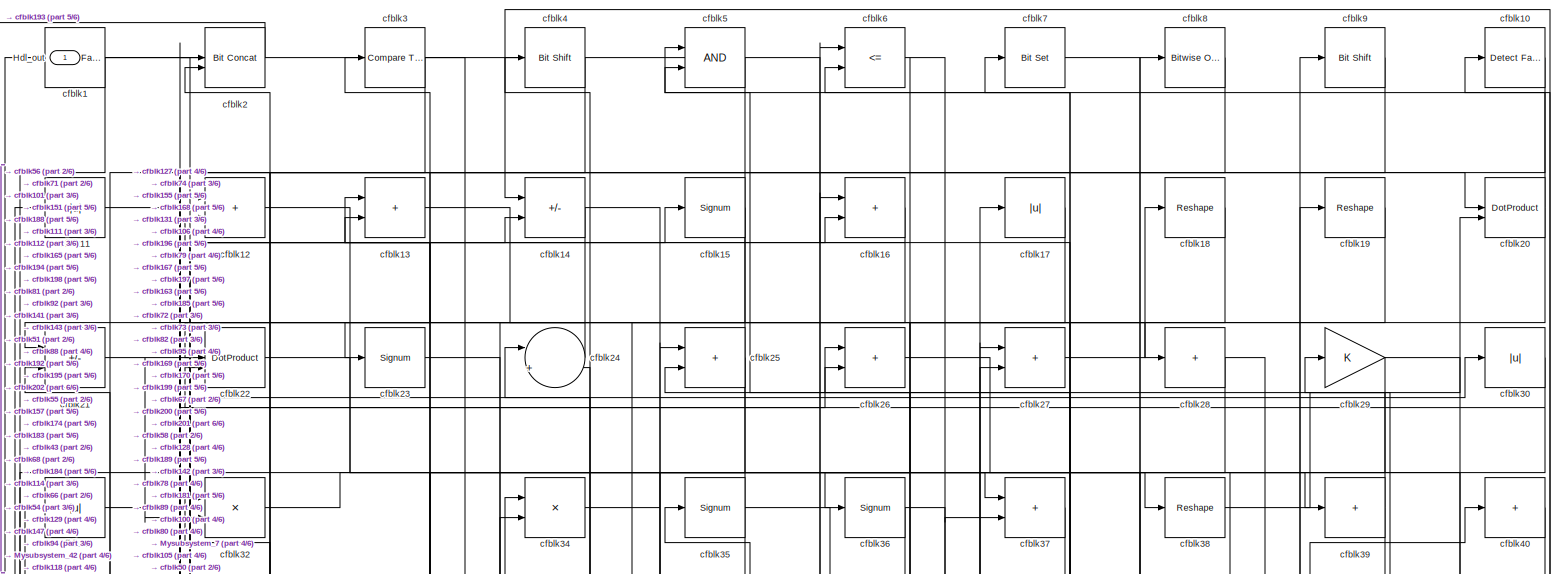
[diagram: root canvas - part 1/6, full width, top band]
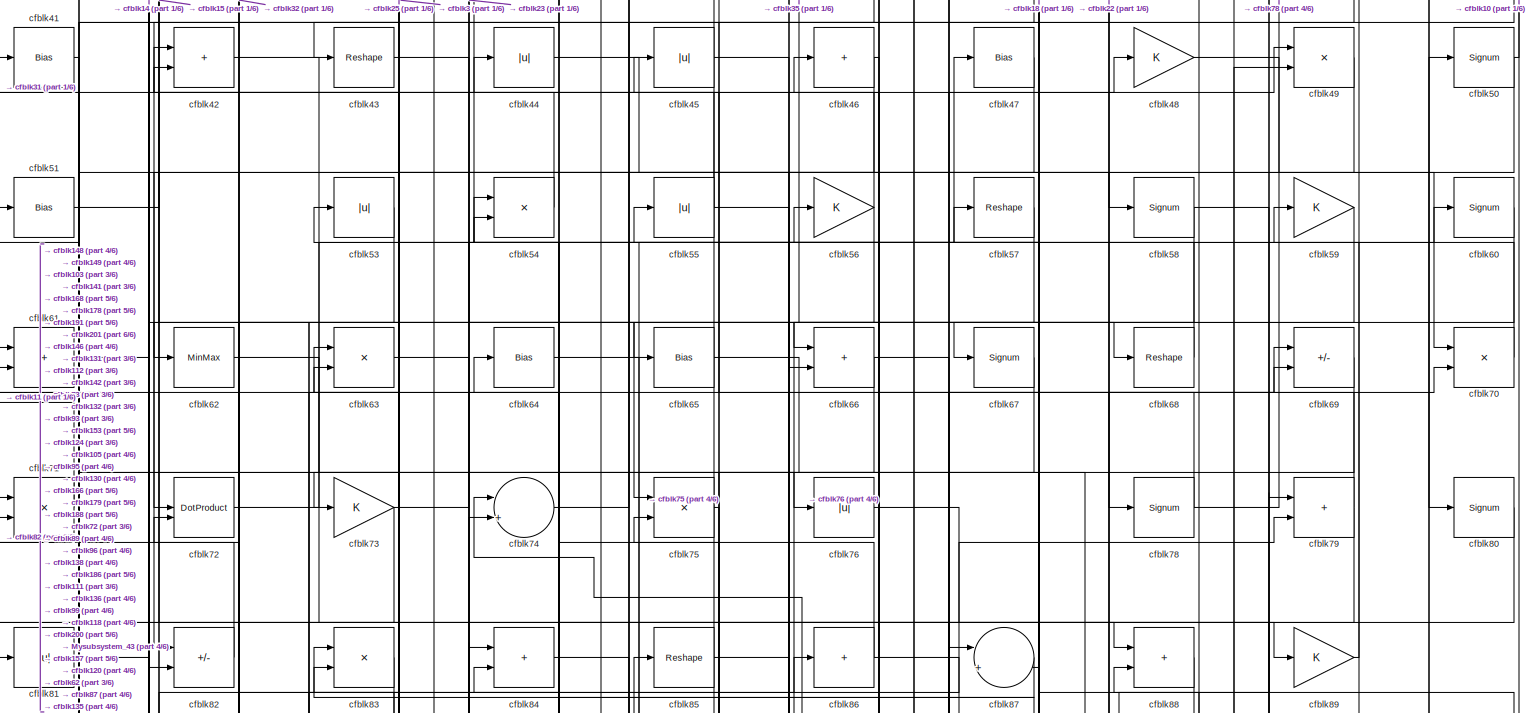
[diagram: root canvas - part 2/6, full width, top band]
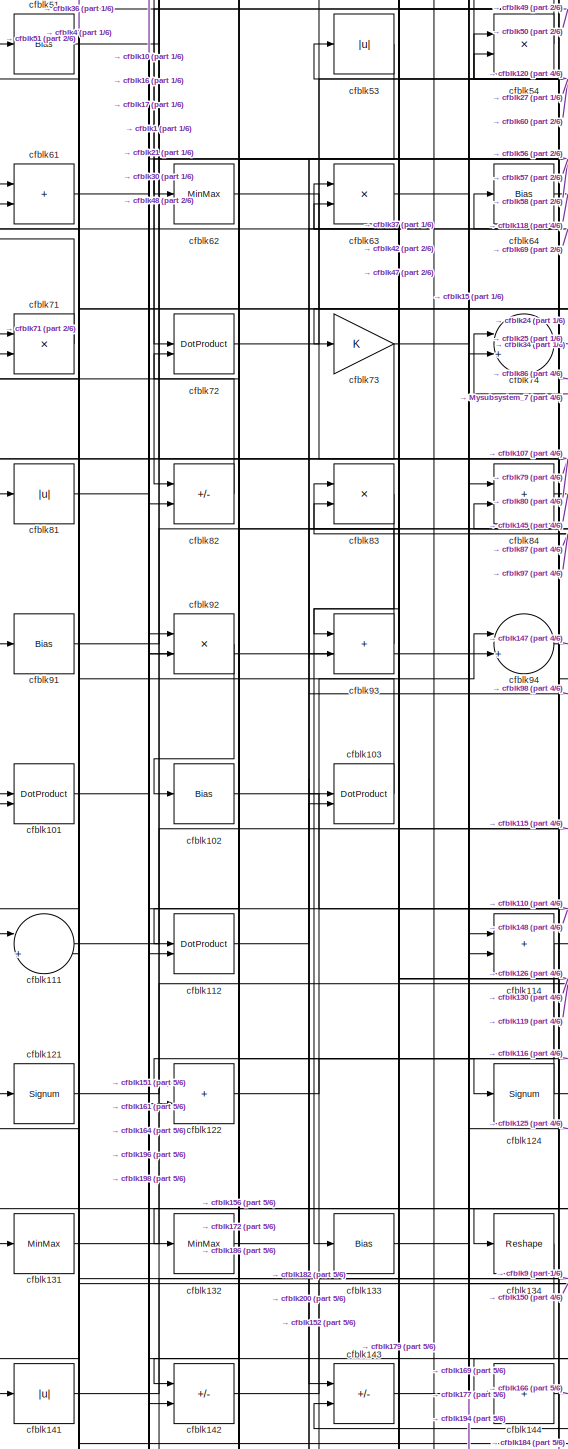
[diagram: root canvas - part 3/6, middle left region]
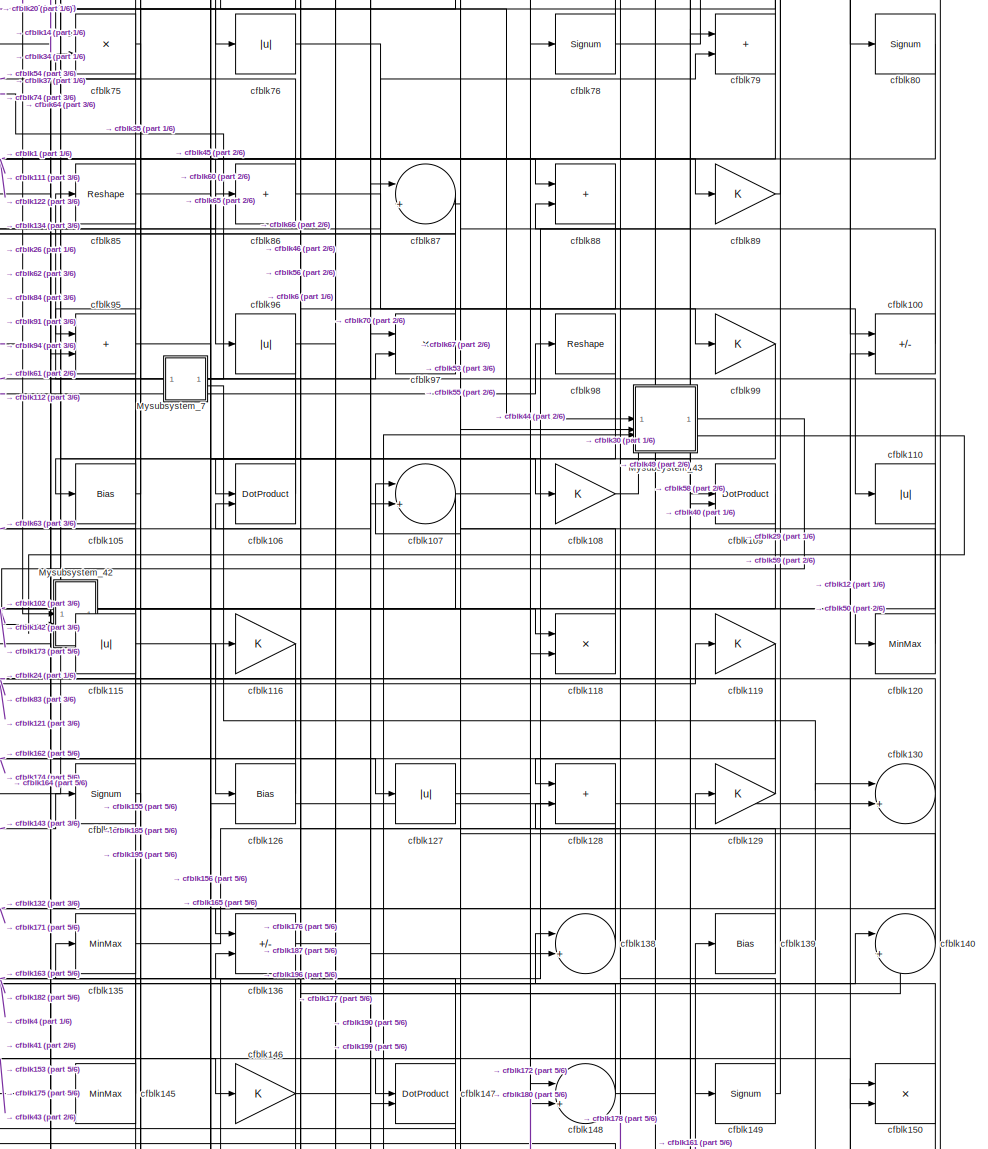
[diagram: root canvas - part 4/6, middle right region]
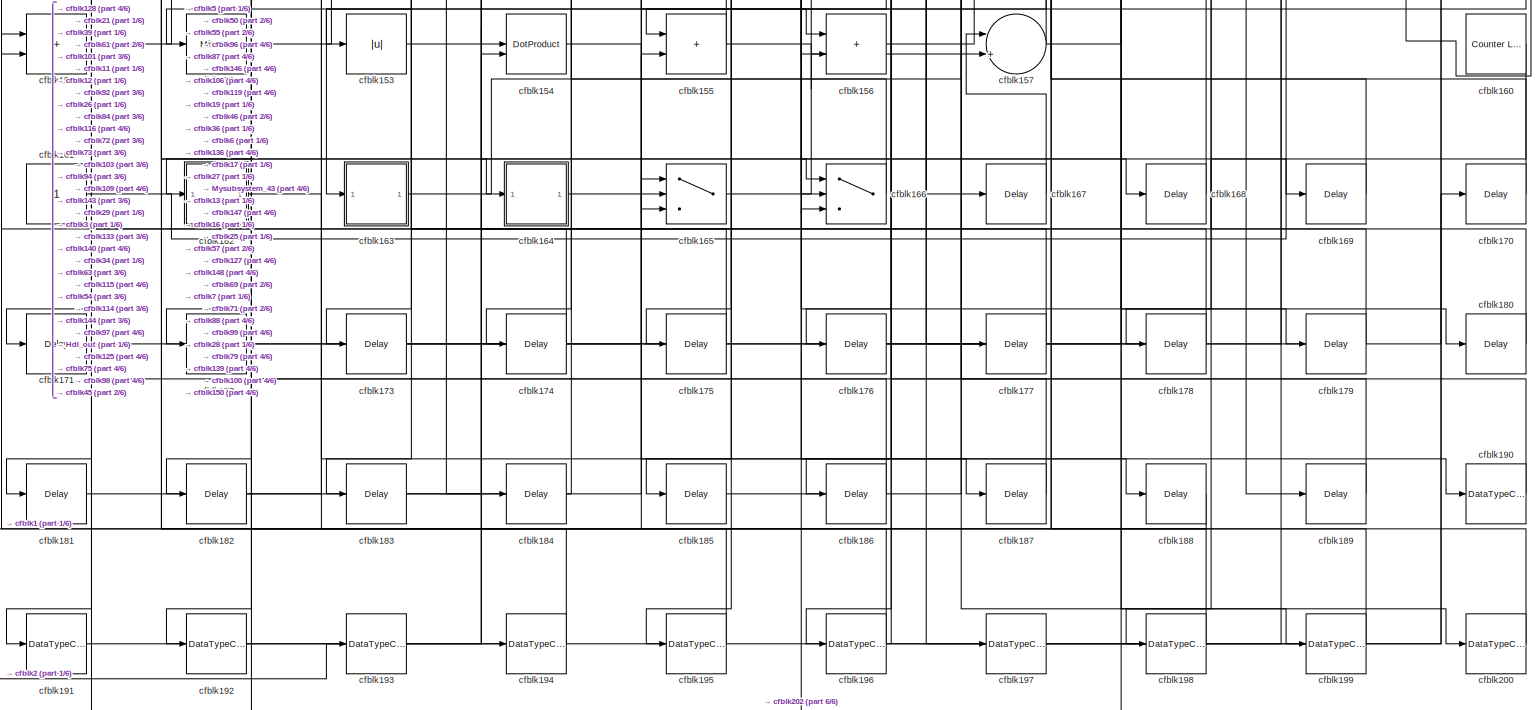
[diagram: root canvas - part 5/6, full width, bottom band]
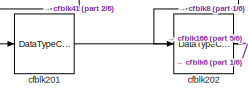
[diagram: root canvas - part 6/6, bottom left region]
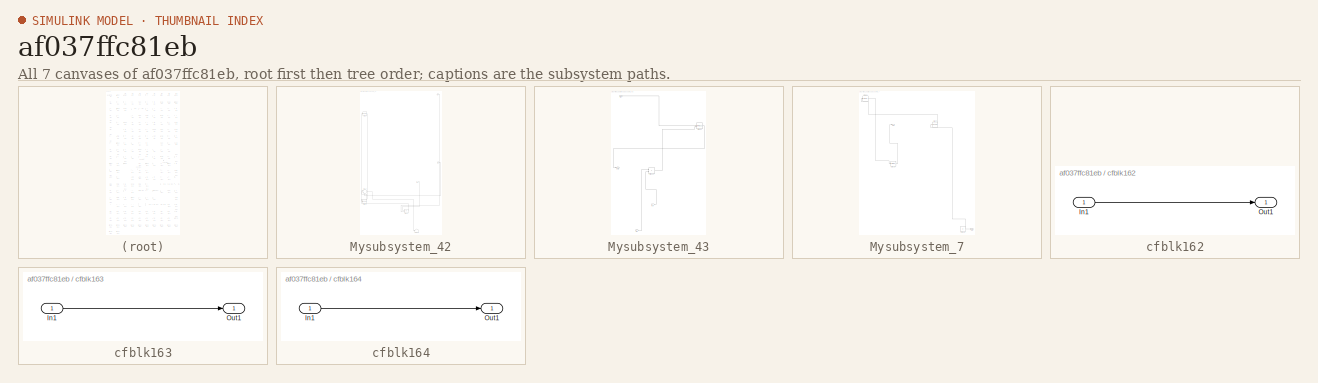
[diagram: thumbnail index - all 7 canvases of the model, root first then tree order]
MODEL slx_af037ffc81eb
KIND model
CONFIG AbsTol = auto
CONFIG EnableMultiTasking = off
CONFIG FixedStep = auto
CONFIG MaxStep = auto
CONFIG MinStep = auto
CONFIG RelTol = 1e-3
CONFIG SampleTimeConstraint = Unconstrained
CONFIG SolverName = VariableStepAuto
CONFIG StartTime = 0.0
CONFIG StopTime = 10.0
BLOCK [Outport] Hdl_out
  OutDataTypeStr = uint8
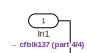
[diagram: Mysubsystem_42 - part 1/4, top right region]
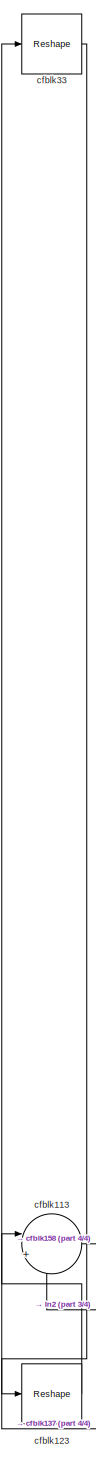
[diagram: Mysubsystem_42 - part 2/4, middle left region]
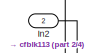
[diagram: Mysubsystem_42 - part 3/4, middle right region]
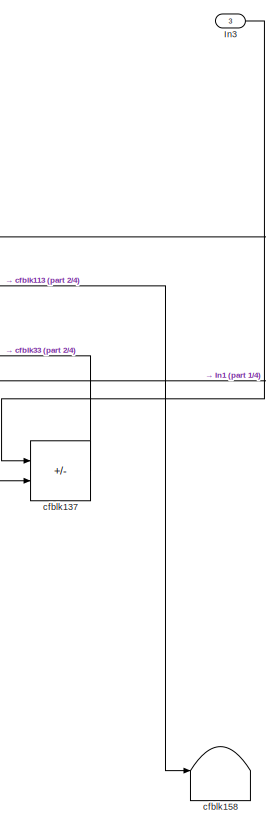
[diagram: Mysubsystem_42 - part 4/4, bottom center region]
BLOCK [SubSystem] Mysubsystem_42
  RTWFcnName = Mysubsystem_42
  RTWFcnNameOpts = User specified
  RTWFileNameOpts = Use function name
  RTWSystemCode = Reusable function
  TreatAsAtomicUnit = on
BLOCK [Inport] Mysubsystem_42/In1
BLOCK [Inport] Mysubsystem_42/In2
  Port = 2
BLOCK [Inport] Mysubsystem_42/In3
  Port = 3
BLOCK [Sum] Mysubsystem_42/cfblk113
  Inputs = |++
BLOCK [Reshape] Mysubsystem_42/cfblk123
BLOCK [Sum] Mysubsystem_42/cfblk137
  IconShape = rectangular
  Inputs = +-
BLOCK [Terminator] Mysubsystem_42/cfblk158
BLOCK [Reshape] Mysubsystem_42/cfblk33
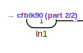
[diagram: Mysubsystem_43 - part 1/2, top left region]
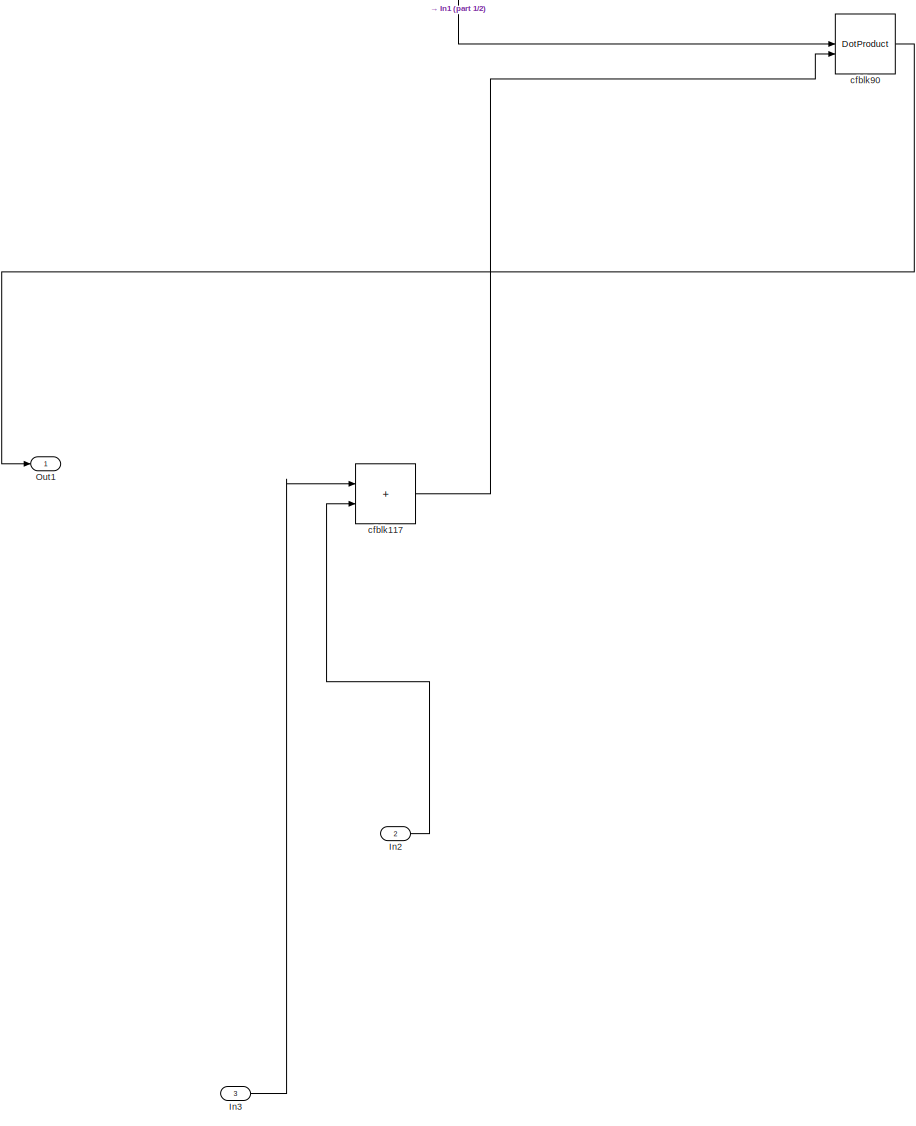
[diagram: Mysubsystem_43 - part 2/2, most of the canvas]
BLOCK [SubSystem] Mysubsystem_43
  RTWFcnName = Mysubsystem_43
  RTWFcnNameOpts = User specified
  RTWFileNameOpts = Use function name
  RTWSystemCode = Reusable function
  TreatAsAtomicUnit = on
BLOCK [Inport] Mysubsystem_43/In1
BLOCK [Inport] Mysubsystem_43/In2
  Port = 2
BLOCK [Inport] Mysubsystem_43/In3
  Port = 3
BLOCK [Outport] Mysubsystem_43/Out1
BLOCK [Sum] Mysubsystem_43/cfblk117
  IconShape = rectangular
BLOCK [DotProduct] Mysubsystem_43/cfblk90
  OutDataTypeStr = Inherit: Inherit via internal rule
BLOCK [SubSystem] Mysubsystem_7
  RTWFcnName = Mysubsystem_7
  RTWFcnNameOpts = User specified
  RTWFileNameOpts = Use function name
  RTWSystemCode = Reusable function
  TreatAsAtomicUnit = on
BLOCK [Outport] Mysubsystem_7/Out1
BLOCK [Outport] Mysubsystem_7/Out2
  Port = 2
BLOCK [MinMax] Mysubsystem_7/cfblk104
BLOCK [Constant] Mysubsystem_7/cfblk159
  SampleTime = -1
BLOCK [MinMax] Mysubsystem_7/cfblk52
BLOCK [Reshape] Mysubsystem_7/cfblk77
BLOCK [Reference] cfblk1  REF=hdlsllib/Logic and Bit
Operations/Detect Fall
Negative
  SourceBlock = hdlsllib/Logic and Bit\nOperations/Detect Fall\nNegative
  SourceType = Detect Fall Negative
BLOCK [Reference] cfblk10  REF=hdlsllib/Logic and Bit
Operations/Detect Fall
Nonpositive
  SourceBlock = hdlsllib/Logic and Bit\nOperations/Detect Fall\nNonpositive
  SourceType = Detect Fall Nonpositive
BLOCK [Sum] cfblk100
  IconShape = rectangular
  Inputs = +-
  OutDataTypeStr = uint8
BLOCK [DotProduct] cfblk101
  OutDataTypeStr = uint8
BLOCK [Bias] cfblk102
  Bias = 0.0
  SaturateOnIntegerOverflow = off
BLOCK [DotProduct] cfblk103
  OutDataTypeStr = uint8
BLOCK [Bias] cfblk105
  Bias = 0.0
  SaturateOnIntegerOverflow = off
BLOCK [DotProduct] cfblk106
  OutDataTypeStr = uint8
BLOCK [Sum] cfblk107
  Inputs = |++
  OutDataTypeStr = uint8
BLOCK [Gain] cfblk108
  OutDataTypeStr = uint8
BLOCK [DotProduct] cfblk109
  OutDataTypeStr = uint8
BLOCK [Abs] cfblk11
  OutDataTypeStr = uint8
  SaturateOnIntegerOverflow = off
BLOCK [Abs] cfblk110
  OutDataTypeStr = uint8
  SaturateOnIntegerOverflow = off
BLOCK [Sum] cfblk111
  Inputs = |++
  OutDataTypeStr = uint8
BLOCK [DotProduct] cfblk112
  OutDataTypeStr = uint8
BLOCK [Sum] cfblk114
  IconShape = rectangular
  OutDataTypeStr = uint8
BLOCK [Abs] cfblk115
  OutDataTypeStr = uint8
  SaturateOnIntegerOverflow = off
BLOCK [Gain] cfblk116
  OutDataTypeStr = uint8
BLOCK [Product] cfblk118
  Inputs = */
  OutDataTypeStr = uint8
  RndMeth = Zero
  SaturateOnIntegerOverflow = on
BLOCK [Gain] cfblk119
  OutDataTypeStr = uint8
BLOCK [Sum] cfblk12
  IconShape = rectangular
  OutDataTypeStr = uint8
BLOCK [MinMax] cfblk120
  OutDataTypeStr = uint8
BLOCK [Signum] cfblk121
BLOCK [Sum] cfblk122
  IconShape = rectangular
  OutDataTypeStr = uint8
BLOCK [Signum] cfblk124
BLOCK [Signum] cfblk125
BLOCK [Bias] cfblk126
  Bias = 0.0
  SaturateOnIntegerOverflow = off
BLOCK [Abs] cfblk127
  OutDataTypeStr = uint8
  SaturateOnIntegerOverflow = off
BLOCK [Sum] cfblk128
  IconShape = rectangular
  OutDataTypeStr = uint8
BLOCK [Gain] cfblk129
  OutDataTypeStr = uint8
BLOCK [Sum] cfblk13
  IconShape = rectangular
  OutDataTypeStr = uint8
BLOCK [Sum] cfblk130
  Inputs = |++
  OutDataTypeStr = uint8
BLOCK [MinMax] cfblk131
  OutDataTypeStr = uint8
BLOCK [MinMax] cfblk132
  OutDataTypeStr = uint8
BLOCK [Bias] cfblk133
  Bias = 0.0
  SaturateOnIntegerOverflow = off
BLOCK [Reshape] cfblk134
BLOCK [MinMax] cfblk135
  OutDataTypeStr = uint8
BLOCK [Sum] cfblk136
  IconShape = rectangular
  Inputs = +-
  OutDataTypeStr = uint8
BLOCK [Sum] cfblk138
  Inputs = |++
  OutDataTypeStr = uint8
BLOCK [Bias] cfblk139
  Bias = 0.0
  SaturateOnIntegerOverflow = off
BLOCK [Sum] cfblk14
  IconShape = rectangular
  Inputs = +-
  OutDataTypeStr = uint8
BLOCK [Sum] cfblk140
  Inputs = |++
  OutDataTypeStr = uint8
BLOCK [Abs] cfblk141
  OutDataTypeStr = uint8
  SaturateOnIntegerOverflow = off
BLOCK [Sum] cfblk142
  IconShape = rectangular
  Inputs = +-
  OutDataTypeStr = uint8
BLOCK [Sum] cfblk143
  IconShape = rectangular
  Inputs = +-
  OutDataTypeStr = uint8
BLOCK [Sum] cfblk144
  IconShape = rectangular
  Inputs = +
  OutDataTypeStr = uint8
BLOCK [MinMax] cfblk145
  OutDataTypeStr = uint8
BLOCK [Gain] cfblk146
  OutDataTypeStr = uint8
BLOCK [DotProduct] cfblk147
  OutDataTypeStr = uint8
BLOCK [Sum] cfblk148
  Inputs = |++
  OutDataTypeStr = uint8
BLOCK [Signum] cfblk149
BLOCK [Signum] cfblk15
BLOCK [Product] cfblk150
  Inputs = */
  OutDataTypeStr = uint8
  RndMeth = Zero
  SaturateOnIntegerOverflow = on
BLOCK [Sum] cfblk151
  IconShape = rectangular
  OutDataTypeStr = uint8
BLOCK [MinMax] cfblk152
  OutDataTypeStr = uint8
BLOCK [Abs] cfblk153
  OutDataTypeStr = uint8
  SaturateOnIntegerOverflow = off
BLOCK [DotProduct] cfblk154
  OutDataTypeStr = uint8
BLOCK [Sum] cfblk155
  IconShape = rectangular
  OutDataTypeStr = uint8
BLOCK [Sum] cfblk156
  IconShape = rectangular
  OutDataTypeStr = uint8
BLOCK [Sum] cfblk157
  Inputs = |++
  OutDataTypeStr = uint8
BLOCK [Sum] cfblk16
  IconShape = rectangular
  OutDataTypeStr = uint8
BLOCK [Reference] cfblk160  REF=hdlsllib/Sources/Counter
Limited
  SourceBlock = hdlsllib/Sources/Counter\nLimited
  SourceType = Counter Limited
BLOCK [Constant] cfblk161
  OutDataTypeStr = uint8
  SampleTime = -1
BLOCK [SubSystem] cfblk162
  LibrarySourceBlock = hdlsllib/Ports &\nSubsystems/Subsystem
BLOCK [Inport] cfblk162/In1
BLOCK [Outport] cfblk162/Out1
BLOCK [SubSystem] cfblk163
  LibrarySourceBlock = hdlsllib/Ports &\nSubsystems/Subsystem
BLOCK [Inport] cfblk163/In1
BLOCK [Outport] cfblk163/Out1
BLOCK [SubSystem] cfblk164
  LibrarySourceBlock = hdlsllib/Ports &\nSubsystems/Subsystem
BLOCK [Inport] cfblk164/In1
BLOCK [Outport] cfblk164/Out1
BLOCK [Switch] cfblk165
  InputSameDT = off
  OutDataTypeStr = uint8
  SaturateOnIntegerOverflow = off
BLOCK [Switch] cfblk166
  InputSameDT = off
  OutDataTypeStr = uint8
  SaturateOnIntegerOverflow = off
BLOCK [Delay] cfblk167
  InputPortMap = u0
  SampleTime = 1
BLOCK [Delay] cfblk168
  InputPortMap = u0
  SampleTime = 1
BLOCK [Delay] cfblk169
  InputPortMap = u0
  SampleTime = 1
BLOCK [Abs] cfblk17
  OutDataTypeStr = uint8
  SaturateOnIntegerOverflow = off
BLOCK [Delay] cfblk170
  InputPortMap = u0
  SampleTime = 1
BLOCK [Delay] cfblk171
  InputPortMap = u0
  SampleTime = 1
BLOCK [Delay] cfblk172
  InputPortMap = u0
  SampleTime = 1
BLOCK [Delay] cfblk173
  InputPortMap = u0
  SampleTime = 1
BLOCK [Delay] cfblk174
  InputPortMap = u0
  SampleTime = 1
BLOCK [Delay] cfblk175
  InputPortMap = u0
  SampleTime = 1
BLOCK [Delay] cfblk176
  InputPortMap = u0
  SampleTime = 1
BLOCK [Delay] cfblk177
  InputPortMap = u0
  SampleTime = 1
BLOCK [Delay] cfblk178
  InputPortMap = u0
  SampleTime = 1
BLOCK [Delay] cfblk179
  InputPortMap = u0
  SampleTime = 1
BLOCK [Reshape] cfblk18
BLOCK [Delay] cfblk180
  InputPortMap = u0
  SampleTime = 1
BLOCK [Delay] cfblk181
  InputPortMap = u0
  SampleTime = 1
BLOCK [Delay] cfblk182
  InputPortMap = u0
  SampleTime = 1
BLOCK [Delay] cfblk183
  InputPortMap = u0
  SampleTime = 1
BLOCK [Delay] cfblk184
  InputPortMap = u0
  SampleTime = 1
BLOCK [Delay] cfblk185
  InputPortMap = u0
  SampleTime = 1
BLOCK [Delay] cfblk186
  InputPortMap = u0
  SampleTime = 1
BLOCK [Delay] cfblk187
  InputPortMap = u0
  SampleTime = 1
BLOCK [Delay] cfblk188
  InputPortMap = u0
  SampleTime = 1
BLOCK [Delay] cfblk189
  InputPortMap = u0
  SampleTime = 1
BLOCK [Reshape] cfblk19
BLOCK [DataTypeConversion] cfblk190
  OutDataTypeStr = uint8
  RndMeth = Floor
  SaturateOnIntegerOverflow = off
BLOCK [DataTypeConversion] cfblk191
  OutDataTypeStr = uint8
  RndMeth = Floor
  SaturateOnIntegerOverflow = off
BLOCK [DataTypeConversion] cfblk192
  OutDataTypeStr = uint8
  RndMeth = Floor
  SaturateOnIntegerOverflow = off
BLOCK [DataTypeConversion] cfblk193
  OutDataTypeStr = uint8
  RndMeth = Floor
  SaturateOnIntegerOverflow = off
BLOCK [DataTypeConversion] cfblk194
  OutDataTypeStr = uint8
  RndMeth = Floor
  SaturateOnIntegerOverflow = off
BLOCK [DataTypeConversion] cfblk195
  OutDataTypeStr = uint8
  RndMeth = Floor
  SaturateOnIntegerOverflow = off
BLOCK [DataTypeConversion] cfblk196
  OutDataTypeStr = uint8
  RndMeth = Floor
  SaturateOnIntegerOverflow = off
BLOCK [DataTypeConversion] cfblk197
  OutDataTypeStr = uint8
  RndMeth = Floor
  SaturateOnIntegerOverflow = off
BLOCK [DataTypeConversion] cfblk198
  OutDataTypeStr = uint8
  RndMeth = Floor
  SaturateOnIntegerOverflow = off
BLOCK [DataTypeConversion] cfblk199
  OutDataTypeStr = uint8
  RndMeth = Floor
  SaturateOnIntegerOverflow = off
BLOCK [Reference] cfblk2  REF=hdlsllib/Logic and Bit
Operations/Bit Concat
  SourceBlock = hdlsllib/Logic and Bit\nOperations/Bit Concat
  SourceType = Bit Concat
BLOCK [DotProduct] cfblk20
  OutDataTypeStr = uint8
BLOCK [DataTypeConversion] cfblk200
  OutDataTypeStr = uint8
  RndMeth = Floor
  SaturateOnIntegerOverflow = off
BLOCK [DataTypeConversion] cfblk201
  OutDataTypeStr = uint8
  RndMeth = Floor
  SaturateOnIntegerOverflow = off
BLOCK [DataTypeConversion] cfblk202
  OutDataTypeStr = uint8
  RndMeth = Floor
  SaturateOnIntegerOverflow = off
BLOCK [Sum] cfblk21
  IconShape = rectangular
  Inputs = +-
  OutDataTypeStr = uint8
BLOCK [DotProduct] cfblk22
  OutDataTypeStr = uint8
BLOCK [Signum] cfblk23
BLOCK [Sum] cfblk24
  Inputs = |++
  OutDataTypeStr = uint8
BLOCK [Sum] cfblk25
  IconShape = rectangular
  OutDataTypeStr = uint8
BLOCK [Sum] cfblk26
  IconShape = rectangular
  OutDataTypeStr = uint8
BLOCK [Sum] cfblk27
  IconShape = rectangular
  OutDataTypeStr = uint8
BLOCK [Sum] cfblk28
  IconShape = rectangular
  Inputs = +
  OutDataTypeStr = uint8
BLOCK [Gain] cfblk29
  OutDataTypeStr = uint8
BLOCK [Reference] cfblk3  REF=hdlsllib/Logic and Bit
Operations/Compare
To Zero
  SourceBlock = hdlsllib/Logic and Bit\nOperations/Compare\nTo Zero
  SourceType = Compare To Zero
BLOCK [Abs] cfblk30
  OutDataTypeStr = uint8
  SaturateOnIntegerOverflow = off
BLOCK [Abs] cfblk31
  OutDataTypeStr = uint8
  SaturateOnIntegerOverflow = off
BLOCK [Product] cfblk32
  Inputs = */
  OutDataTypeStr = uint8
  RndMeth = Zero
  SaturateOnIntegerOverflow = on
BLOCK [Product] cfblk34
  Inputs = */
  OutDataTypeStr = uint8
  RndMeth = Zero
  SaturateOnIntegerOverflow = on
BLOCK [Signum] cfblk35
BLOCK [Signum] cfblk36
BLOCK [Sum] cfblk37
  IconShape = rectangular
  OutDataTypeStr = uint8
BLOCK [Reshape] cfblk38
BLOCK [Sum] cfblk39
  IconShape = rectangular
  Inputs = +
  OutDataTypeStr = uint8
BLOCK [Reference] cfblk4  REF=hdlsllib/Logic and Bit
Operations/Bit Shift
  SourceBlock = hdlsllib/Logic and Bit\nOperations/Bit Shift
  SourceType = Bit Shift
BLOCK [Sum] cfblk40
  IconShape = rectangular
  Inputs = +
  OutDataTypeStr = uint8
BLOCK [Bias] cfblk41
  Bias = 0.0
  SaturateOnIntegerOverflow = off
BLOCK [Sum] cfblk42
  IconShape = rectangular
  OutDataTypeStr = uint8
BLOCK [Reshape] cfblk43
BLOCK [Abs] cfblk44
  OutDataTypeStr = uint8
  SaturateOnIntegerOverflow = off
BLOCK [Abs] cfblk45
  OutDataTypeStr = uint8
  SaturateOnIntegerOverflow = off
BLOCK [Sum] cfblk46
  IconShape = rectangular
  Inputs = +
  OutDataTypeStr = uint8
BLOCK [Bias] cfblk47
  Bias = 0.0
  SaturateOnIntegerOverflow = off
BLOCK [Gain] cfblk48
  OutDataTypeStr = uint8
BLOCK [Product] cfblk49
  Inputs = */
  OutDataTypeStr = uint8
  RndMeth = Zero
  SaturateOnIntegerOverflow = on
BLOCK [Logic] cfblk5
  AllPortsSameDT = off
  OutDataTypeStr = boolean
BLOCK [Signum] cfblk50
BLOCK [Bias] cfblk51
  Bias = 0.0
  SaturateOnIntegerOverflow = off
BLOCK [Abs] cfblk53
  OutDataTypeStr = uint8
  SaturateOnIntegerOverflow = off
BLOCK [Product] cfblk54
  Inputs = */
  OutDataTypeStr = uint8
  RndMeth = Zero
  SaturateOnIntegerOverflow = on
BLOCK [Abs] cfblk55
  OutDataTypeStr = uint8
  SaturateOnIntegerOverflow = off
BLOCK [Gain] cfblk56
  OutDataTypeStr = uint8
BLOCK [Reshape] cfblk57
BLOCK [Signum] cfblk58
BLOCK [Gain] cfblk59
  OutDataTypeStr = uint8
BLOCK [RelationalOperator] cfblk6
  InputSameDT = off
  Operator = <=
  OutDataTypeStr = boolean
BLOCK [Signum] cfblk60
BLOCK [Sum] cfblk61
  IconShape = rectangular
  OutDataTypeStr = uint8
BLOCK [MinMax] cfblk62
  OutDataTypeStr = uint8
BLOCK [Product] cfblk63
  Inputs = */
  OutDataTypeStr = uint8
  RndMeth = Zero
  SaturateOnIntegerOverflow = on
BLOCK [Bias] cfblk64
  Bias = 0.0
  SaturateOnIntegerOverflow = off
BLOCK [Bias] cfblk65
  Bias = 0.0
  SaturateOnIntegerOverflow = off
BLOCK [Sum] cfblk66
  IconShape = rectangular
  OutDataTypeStr = uint8
BLOCK [Signum] cfblk67
BLOCK [Reshape] cfblk68
BLOCK [Sum] cfblk69
  IconShape = rectangular
  Inputs = +-
  OutDataTypeStr = uint8
BLOCK [Reference] cfblk7  REF=simulink/Logic and Bit
Operations/Bit Set
  LibrarySourceBlock = hdlsllib/Logic and Bit\nOperations/Bit Set
  SourceBlock = simulink/Logic and Bit\nOperations/Bit Set
  SourceType = Bit Set
BLOCK [Product] cfblk70
  Inputs = */
  OutDataTypeStr = uint8
  RndMeth = Zero
  SaturateOnIntegerOverflow = on
BLOCK [Product] cfblk71
  Inputs = */
  OutDataTypeStr = uint8
  RndMeth = Zero
  SaturateOnIntegerOverflow = on
BLOCK [DotProduct] cfblk72
  OutDataTypeStr = uint8
BLOCK [Gain] cfblk73
  OutDataTypeStr = uint8
BLOCK [Sum] cfblk74
  Inputs = |++
  OutDataTypeStr = uint8
BLOCK [Product] cfblk75
  Inputs = */
  OutDataTypeStr = uint8
  RndMeth = Zero
  SaturateOnIntegerOverflow = on
BLOCK [Abs] cfblk76
  OutDataTypeStr = uint8
  SaturateOnIntegerOverflow = off
BLOCK [Signum] cfblk78
BLOCK [Sum] cfblk79
  IconShape = rectangular
  OutDataTypeStr = uint8
BLOCK [Reference] cfblk8  REF=simulink/Logic and Bit
Operations/Bitwise
Operator
  LibrarySourceBlock = hdlsllib/Logic and Bit\nOperations/Bitwise\nOperator
  SourceBlock = simulink/Logic and Bit\nOperations/Bitwise\nOperator
  SourceType = Bitwise Operator
BLOCK [Signum] cfblk80
BLOCK [Abs] cfblk81
  OutDataTypeStr = uint8
  SaturateOnIntegerOverflow = off
BLOCK [Sum] cfblk82
  IconShape = rectangular
  Inputs = +-
  OutDataTypeStr = uint8
BLOCK [Product] cfblk83
  Inputs = */
  OutDataTypeStr = uint8
  RndMeth = Zero
  SaturateOnIntegerOverflow = on
BLOCK [Sum] cfblk84
  IconShape = rectangular
  OutDataTypeStr = uint8
BLOCK [Reshape] cfblk85
BLOCK [Sum] cfblk86
  IconShape = rectangular
  Inputs = +
  OutDataTypeStr = uint8
BLOCK [Sum] cfblk87
  Inputs = |++
  OutDataTypeStr = uint8
BLOCK [Sum] cfblk88
  IconShape = rectangular
  OutDataTypeStr = uint8
BLOCK [Gain] cfblk89
  OutDataTypeStr = uint8
BLOCK [Reference] cfblk9  REF=hdlsllib/Logic and Bit
Operations/Bit Shift
  SourceBlock = hdlsllib/Logic and Bit\nOperations/Bit Shift
  SourceType = Bit Shift
BLOCK [Bias] cfblk91
  Bias = 0.0
  SaturateOnIntegerOverflow = off
BLOCK [Product] cfblk92
  Inputs = */
  OutDataTypeStr = uint8
  RndMeth = Zero
  SaturateOnIntegerOverflow = on
BLOCK [Sum] cfblk93
  IconShape = rectangular
  OutDataTypeStr = uint8
BLOCK [Sum] cfblk94
  Inputs = |++
  OutDataTypeStr = uint8
BLOCK [Sum] cfblk95
  IconShape = rectangular
  OutDataTypeStr = uint8
BLOCK [Abs] cfblk96
  OutDataTypeStr = uint8
  SaturateOnIntegerOverflow = off
BLOCK [Product] cfblk97
  Inputs = */
  OutDataTypeStr = uint8
  RndMeth = Zero
  SaturateOnIntegerOverflow = on
BLOCK [Reshape] cfblk98
BLOCK [Gain] cfblk99
  OutDataTypeStr = uint8
LINE Mysubsystem_42/In1:1 -> Mysubsystem_42/cfblk137:2
LINE Mysubsystem_42/In2:1 -> Mysubsystem_42/cfblk113:2
LINE Mysubsystem_42/In3:1 -> Mysubsystem_42/cfblk137:1
LINE Mysubsystem_42/cfblk113:1 -> Mysubsystem_42/cfblk158:1
LINE Mysubsystem_42/cfblk123:1 -> Mysubsystem_42/cfblk113:1
LINE Mysubsystem_42/cfblk137:1 -> Mysubsystem_42/cfblk33:1
LINE Mysubsystem_42/cfblk33:1 -> Mysubsystem_42/cfblk123:1
LINE Mysubsystem_43/In1:1 -> Mysubsystem_43/cfblk90:1
LINE Mysubsystem_43/In2:1 -> Mysubsystem_43/cfblk117:2
LINE Mysubsystem_43/In3:1 -> Mysubsystem_43/cfblk117:1
LINE Mysubsystem_43/cfblk117:1 -> Mysubsystem_43/cfblk90:2
LINE Mysubsystem_43/cfblk90:1 -> Mysubsystem_43/Out1:1
LINE Mysubsystem_43:1 -> Mysubsystem_42:2
LINE Mysubsystem_7/cfblk104:1 -> Mysubsystem_7/Out1:1
NET Mysubsystem_7/cfblk159:1 -> Mysubsystem_7/Out2:1, Mysubsystem_7/cfblk77:1
LINE Mysubsystem_7/cfblk52:1 -> Mysubsystem_7/cfblk104:1
LINE Mysubsystem_7/cfblk77:1 -> Mysubsystem_7/cfblk52:1
LINE Mysubsystem_7:1 -> cfblk74:1
NET Mysubsystem_7:2 -> cfblk130:1, cfblk14:1
LINE cfblk100:1 -> cfblk6:2
LINE cfblk101:1 -> cfblk164:1
LINE cfblk102:1 -> cfblk148:2
LINE cfblk103:1 -> cfblk51:1
NET cfblk105:1 -> cfblk61:1, cfblk75:2
LINE cfblk106:1 -> cfblk35:1
NET cfblk107:1 -> cfblk115:1, cfblk150:2
LINE cfblk108:1 -> Mysubsystem_42:3
LINE cfblk109:1 -> cfblk173:1
LINE cfblk10:1 -> cfblk82:2
NET cfblk110:1 -> cfblk142:2, cfblk85:1
LINE cfblk111:1 -> cfblk49:1
NET cfblk112:1 -> cfblk86:1, cfblk98:1
NET cfblk114:1 -> cfblk152:1, cfblk156:1
NET cfblk115:1 -> cfblk126:1, cfblk174:1, cfblk63:2
NET cfblk116:1 -> cfblk122:1, cfblk162:1
LINE cfblk118:1 -> cfblk55:1
LINE cfblk119:1 -> cfblk176:1
NET cfblk11:1 -> cfblk165:3, cfblk20:1
LINE cfblk120:1 -> cfblk53:1
LINE cfblk121:1 -> cfblk119:1
LINE cfblk122:1 -> cfblk124:1
NET cfblk124:1 -> cfblk42:2, cfblk47:1
LINE cfblk125:1 -> cfblk155:1
LINE cfblk126:1 -> cfblk83:1
LINE cfblk127:1 -> cfblk180:1
LINE cfblk128:1 -> cfblk171:1
LINE cfblk129:1 -> cfblk24:1
LINE cfblk12:1 -> cfblk100:1
NET cfblk130:1 -> cfblk132:1, cfblk63:1
LINE cfblk131:1 -> cfblk48:1
LINE cfblk132:1 -> cfblk69:1
NET cfblk133:1 -> cfblk169:1, cfblk74:2
LINE cfblk134:1 -> cfblk144:1
LINE cfblk135:1 -> cfblk50:1
NET cfblk136:1 -> cfblk140:2, cfblk199:1, cfblk70:2
LINE cfblk138:1 -> cfblk46:1
LINE cfblk139:1 -> cfblk129:1
LINE cfblk13:1 -> cfblk28:1
LINE cfblk140:1 -> cfblk107:1
LINE cfblk141:1 -> cfblk30:1
LINE cfblk142:1 -> cfblk9:1
LINE cfblk143:1 -> cfblk125:1
LINE cfblk144:1 -> cfblk166:1
LINE cfblk145:1 -> cfblk135:1
NET cfblk146:1 -> cfblk138:2, cfblk163:1, cfblk41:1
NET cfblk147:1 -> cfblk182:1, cfblk4:1
NET cfblk148:1 -> cfblk116:1, cfblk138:1, cfblk49:2, cfblk56:1
NET cfblk149:1 -> cfblk128:2, cfblk59:1
NET cfblk14:1 -> cfblk118:2, cfblk22:1
NET cfblk150:1 -> Mysubsystem_43:2, cfblk121:1, cfblk175:1
NET cfblk151:1 -> cfblk26:2, cfblk84:1
LINE cfblk152:1 -> cfblk94:1
LINE cfblk153:1 -> cfblk140:1
LINE cfblk154:1 -> cfblk190:1
NET cfblk155:1 -> Hdl_out:1, cfblk157:2
LINE cfblk156:1 -> Mysubsystem_43:3
NET cfblk157:1 -> cfblk13:1, cfblk69:2
LINE cfblk15:1 -> cfblk114:2
LINE cfblk160:1 -> cfblk198:1
NET cfblk161:1 -> cfblk139:1, cfblk94:2
LINE cfblk162/In1:1 -> cfblk162/Out1:1
LINE cfblk162:1 -> cfblk187:1
LINE cfblk163/In1:1 -> cfblk163/Out1:1
LINE cfblk163:1 -> cfblk17:1
LINE cfblk164/In1:1 -> cfblk164/Out1:1
LINE cfblk164:1 -> cfblk97:2
LINE cfblk165:1 -> cfblk87:1
LINE cfblk166:1 -> cfblk54:1
LINE cfblk167:1 -> cfblk157:1
LINE cfblk168:1 -> cfblk71:2
LINE cfblk169:1 -> cfblk16:1
NET cfblk16:1 -> cfblk112:2, cfblk12:2
LINE cfblk170:1 -> cfblk25:2
LINE cfblk171:1 -> cfblk165:1
LINE cfblk172:1 -> cfblk148:1
LINE cfblk173:1 -> cfblk79:1
LINE cfblk174:1 -> cfblk13:2
LINE cfblk175:1 -> cfblk151:1
LINE cfblk176:1 -> cfblk100:2
LINE cfblk177:1 -> cfblk114:1
LINE cfblk178:1 -> cfblk61:2
LINE cfblk179:1 -> cfblk143:2
LINE cfblk17:1 -> cfblk92:2
LINE cfblk180:1 -> cfblk88:2
LINE cfblk181:1 -> cfblk34:2
LINE cfblk182:1 -> cfblk103:2
LINE cfblk183:1 -> cfblk155:2
LINE cfblk184:1 -> cfblk84:2
LINE cfblk185:1 -> cfblk27:1
LINE cfblk186:1 -> cfblk72:2
LINE cfblk187:1 -> cfblk136:2
LINE cfblk188:1 -> cfblk1:1
LINE cfblk189:1 -> cfblk21:2
NET cfblk18:1 -> cfblk36:1, cfblk67:1
LINE cfblk190:1 -> cfblk97:1
LINE cfblk191:1 -> cfblk154:1
LINE cfblk192:1 -> cfblk154:2
LINE cfblk193:1 -> cfblk170:1
LINE cfblk194:1 -> cfblk2:1
LINE cfblk195:1 -> cfblk2:2
NET cfblk196:1 -> cfblk106:2, cfblk150:1, cfblk165:2, cfblk92:1
LINE cfblk197:1 -> cfblk19:1
NET cfblk198:1 -> cfblk101:1, cfblk12:1
LINE cfblk199:1 -> cfblk7:1
LINE cfblk19:1 -> cfblk196:1
NET cfblk1:1 -> cfblk101:2, cfblk88:1
NET cfblk200:1 -> cfblk103:1, cfblk57:1
LINE cfblk201:1 -> cfblk8:1
NET cfblk202:1 -> cfblk166:3, cfblk6:1
NET cfblk20:1 -> Mysubsystem_42:1, cfblk5:1
NET cfblk21:1 -> cfblk143:1, cfblk32:2
LINE cfblk22:1 -> cfblk58:1
LINE cfblk23:1 -> cfblk66:2
LINE cfblk24:1 -> cfblk21:1
LINE cfblk25:1 -> cfblk43:1
LINE cfblk26:1 -> cfblk38:1
LINE cfblk27:1 -> cfblk18:1
NET cfblk28:1 -> cfblk151:2, cfblk189:1
NET cfblk29:1 -> cfblk183:1, cfblk80:1
LINE cfblk2:1 -> cfblk193:1
NET cfblk30:1 -> cfblk128:1, cfblk22:2
LINE cfblk31:1 -> cfblk16:2
LINE cfblk32:1 -> cfblk37:1
NET cfblk34:1 -> cfblk127:1, cfblk39:1
LINE cfblk35:1 -> cfblk68:1
NET cfblk36:1 -> cfblk131:1, cfblk197:1
NET cfblk37:1 -> cfblk73:1, cfblk82:1, cfblk95:2
LINE cfblk38:1 -> cfblk20:2
NET cfblk39:1 -> cfblk181:1, cfblk5:2
NET cfblk3:1 -> cfblk184:1, cfblk192:1
LINE cfblk40:1 -> cfblk105:1
LINE cfblk41:1 -> cfblk201:1
LINE cfblk42:1 -> cfblk76:1
LINE cfblk43:1 -> cfblk149:1
LINE cfblk44:1 -> cfblk78:1
NET cfblk45:1 -> cfblk130:2, cfblk188:1
NET cfblk46:1 -> cfblk153:1, cfblk186:1
LINE cfblk47:1 -> cfblk93:1
LINE cfblk48:1 -> cfblk70:1
LINE cfblk49:1 -> cfblk141:1
LINE cfblk4:1 -> cfblk111:1
NET cfblk50:1 -> cfblk10:1, cfblk166:2, cfblk72:1
NET cfblk51:1 -> cfblk15:1, cfblk65:1
LINE cfblk53:1 -> cfblk93:2
LINE cfblk54:1 -> cfblk34:1
NET cfblk55:1 -> cfblk179:1, cfblk32:1, cfblk89:1
NET cfblk56:1 -> cfblk142:1, cfblk31:1
LINE cfblk57:1 -> cfblk112:1
NET cfblk58:1 -> cfblk120:1, cfblk62:1, cfblk87:2
LINE cfblk59:1 -> cfblk75:1
LINE cfblk5:1 -> cfblk168:1
LINE cfblk60:1 -> cfblk96:1
LINE cfblk61:1 -> cfblk146:1
LINE cfblk62:1 -> cfblk107:2
LINE cfblk63:1 -> cfblk194:1
LINE cfblk64:1 -> cfblk118:1
LINE cfblk65:1 -> Mysubsystem_43:1
NET cfblk66:1 -> cfblk81:1, cfblk99:1
LINE cfblk67:1 -> cfblk95:1
NET cfblk68:1 -> cfblk3:1, cfblk66:1
LINE cfblk69:1 -> cfblk191:1
NET cfblk6:1 -> cfblk106:1, cfblk167:1, cfblk37:2
LINE cfblk70:1 -> cfblk44:1
LINE cfblk71:1 -> cfblk11:1
LINE cfblk72:1 -> cfblk27:2
NET cfblk73:1 -> cfblk172:1, cfblk60:1, cfblk91:1
LINE cfblk74:1 -> cfblk25:1
LINE cfblk75:1 -> cfblk195:1
LINE cfblk76:1 -> cfblk109:1
NET cfblk78:1 -> cfblk40:1, cfblk45:1
NET cfblk79:1 -> cfblk111:2, cfblk122:2, cfblk26:1
LINE cfblk7:1 -> cfblk200:1
NET cfblk80:1 -> cfblk134:1, cfblk147:1
LINE cfblk81:1 -> cfblk14:2
LINE cfblk82:1 -> cfblk71:1
LINE cfblk83:1 -> cfblk133:1
LINE cfblk84:1 -> cfblk145:1
LINE cfblk85:1 -> cfblk109:2
NET cfblk86:1 -> cfblk110:1, cfblk54:2
LINE cfblk87:1 -> cfblk83:2
LINE cfblk88:1 -> cfblk136:1
LINE cfblk89:1 -> cfblk29:1
LINE cfblk8:1 -> cfblk202:1
LINE cfblk91:1 -> cfblk79:2
LINE cfblk92:1 -> cfblk102:1
LINE cfblk93:1 -> cfblk42:1
NET cfblk94:1 -> cfblk147:2, cfblk24:2
LINE cfblk95:1 -> cfblk108:1
NET cfblk96:1 -> cfblk156:2, cfblk177:1
LINE cfblk97:1 -> cfblk64:1
LINE cfblk98:1 -> cfblk185:1
LINE cfblk99:1 -> cfblk178:1
LINE cfblk9:1 -> cfblk23:1
note: NET lines group one-source signal fan-out (src -> all destinations, sorted); 1:1 wires keep LINE
